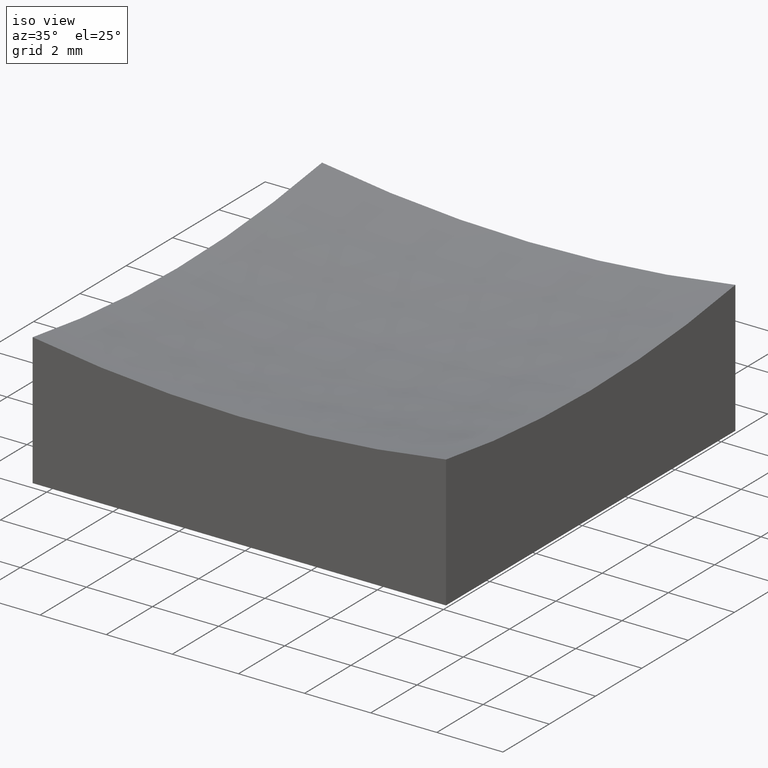
[diagram: clean part render]
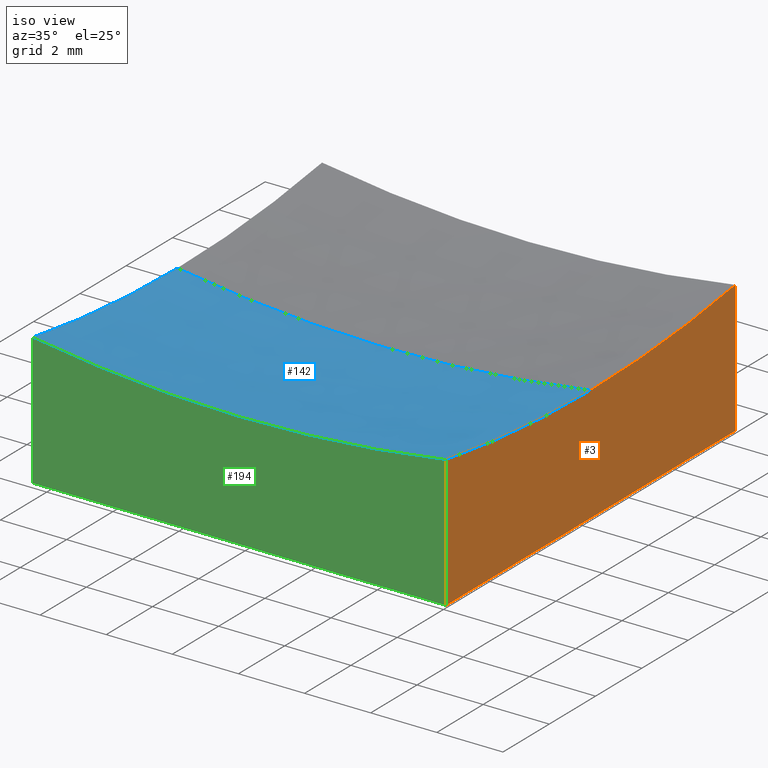
[diagram: same view with three faces highlighted in distinct colors, each labeled with its STEP entity id]
A machine part, iso view with three faces highlighted in distinct colors.
Their STEP definitions:

[orange] entity #3 — the highlighted planar face has unit normal (1, 0, -0).
#3 = ADVANCED_FACE ( 'NONE', ( #32 ), #9, .T. ) ;
#9 = PLANE ( 'NONE',  #179 ) ;
#12 = DIRECTION ( 'NONE',  ( 1.000000000000000000, 0.0000000000000000000, -0.0000000000000000000 ) ) ;
#13 = CARTESIAN_POINT ( 'NONE',  ( 6.250000000000000000, 6.250000000000000888, 0.0000000000000000000 ) ) ;
#17 = EDGE_CURVE ( 'NONE', #183, #203, #109, .T. ) ;
#23 = VERTEX_POINT ( 'NONE', #174 ) ;
#30 = DIRECTION ( 'NONE',  ( 0.0000000000000000000, -1.000000000000000000, 0.0000000000000000000 ) ) ;
#32 = FACE_OUTER_BOUND ( 'NONE', #112, .T. ) ;
#34 = DIRECTION ( 'NONE',  ( 0.0000000000000000000, 0.0000000000000000000, -1.000000000000000000 ) ) ;
#35 = CARTESIAN_POINT ( 'NONE',  ( 6.250000000000000000, 0.0000000000000000000, 3.491298426802226018 ) ) ;
#37 = AXIS2_PLACEMENT_3D ( 'NONE', #78, #12, #34 ) ;
#44 = ORIENTED_EDGE ( 'NONE', *, *, #17, .F. ) ;
#61 = CARTESIAN_POINT ( 'NONE',  ( 6.250000000000000000, -6.250000000000000888, 0.0000000000000000000 ) ) ;
#65 = EDGE_CURVE ( 'NONE', #23, #183, #191, .T. ) ;
#72 = CARTESIAN_POINT ( 'NONE',  ( 6.250000000000000000, 6.250000000000000888, 10.00000000000000000 ) ) ;
#73 = DIRECTION ( 'NONE',  ( 0.0000000000000000000, 0.0000000000000000000, -1.000000000000000000 ) ) ;
#76 = CARTESIAN_POINT ( 'NONE',  ( 6.250000000000000000, -6.250000000000000888, 3.988783664181906552 ) ) ;
#78 = CARTESIAN_POINT ( 'NONE',  ( 6.250000000000000000, 0.0000000000000000000, 43.00000000000000000 ) ) ;
#87 = EDGE_CURVE ( 'NONE', #175, #164, #222, .T. ) ;
#109 = LINE ( 'NONE', #133, #136 ) ;
#112 = EDGE_LOOP ( 'NONE', ( #204, #126, #44, #143, #166 ) ) ;
#126 = ORIENTED_EDGE ( 'NONE', *, *, #165, .T. ) ;
#129 = DIRECTION ( 'NONE',  ( 1.000000000000000000, 0.0000000000000000000, -0.0000000000000000000 ) ) ;
#133 = CARTESIAN_POINT ( 'NONE',  ( 6.250000000000000000, 6.250000000000000888, 0.0000000000000000000 ) ) ;
#134 = DIRECTION ( 'NONE',  ( -0.0000000000000000000, 0.0000000000000000000, -1.000000000000000000 ) ) ;
#136 = VECTOR ( 'NONE', #30, 1000.000000000000000 ) ;
#143 = ORIENTED_EDGE ( 'NONE', *, *, #65, .F. ) ;
#153 = CARTESIAN_POINT ( 'NONE',  ( 6.250000000000000000, 6.250000000000000888, 10.00000000000000000 ) ) ;
#155 = EDGE_CURVE ( 'NONE', #164, #23, #244, .T. ) ;
#164 = VERTEX_POINT ( 'NONE', #35 ) ;
#165 = EDGE_CURVE ( 'NONE', #175, #203, #223, .T. ) ;
#166 = ORIENTED_EDGE ( 'NONE', *, *, #155, .F. ) ;
#174 = CARTESIAN_POINT ( 'NONE',  ( 6.250000000000000000, 6.250000000000000888, 3.988783664181906552 ) ) ;
#175 = VERTEX_POINT ( 'NONE', #76 ) ;
#179 = AXIS2_PLACEMENT_3D ( 'NONE', #72, #129, #134 ) ;
#183 = VERTEX_POINT ( 'NONE', #13 ) ;
#189 = VECTOR ( 'NONE', #224, 1000.000000000000000 ) ;
#191 = LINE ( 'NONE', #153, #235 ) ;
#203 = VERTEX_POINT ( 'NONE', #61 ) ;
#204 = ORIENTED_EDGE ( 'NONE', *, *, #87, .F. ) ;
#207 = DIRECTION ( 'NONE',  ( 1.000000000000000000, 0.0000000000000000000, -0.0000000000000000000 ) ) ;
#208 = CARTESIAN_POINT ( 'NONE',  ( 6.250000000000000000, 0.0000000000000000000, 43.00000000000000000 ) ) ;
#214 = CARTESIAN_POINT ( 'NONE',  ( 6.250000000000000000, -6.250000000000000888, 10.00000000000000000 ) ) ;
#222 = CIRCLE ( 'NONE', #229, 39.50870157319778286 ) ;
#223 = LINE ( 'NONE', #214, #189 ) ;
#224 = DIRECTION ( 'NONE',  ( -0.0000000000000000000, -0.0000000000000000000, -1.000000000000000000 ) ) ;
#229 = AXIS2_PLACEMENT_3D ( 'NONE', #208, #207, #73 ) ;
#235 = VECTOR ( 'NONE', #241, 1000.000000000000000 ) ;
#241 = DIRECTION ( 'NONE',  ( -0.0000000000000000000, -0.0000000000000000000, -1.000000000000000000 ) ) ;
#244 = CIRCLE ( 'NONE', #37, 39.50870157319778286 ) ;

[blue] entity #142 — the highlighted spherical surface has radius 40 mm.
#1 = ORIENTED_EDGE ( 'NONE', *, *, #75, .F. ) ;
#5 = ORIENTED_EDGE ( 'NONE', *, *, #181, .F. ) ;
#7 = VERTEX_POINT ( 'NONE', #115 ) ;
#8 = CARTESIAN_POINT ( 'NONE',  ( -6.250000000000000000, 7.654042494670970425E-16, 3.491298426802226018 ) ) ;
#14 = DIRECTION ( 'NONE',  ( 0.0000000000000000000, 0.0000000000000000000, -1.000000000000000000 ) ) ;
#18 = SPHERICAL_SURFACE ( 'NONE', #167, 40.00000000000000711 ) ;
#21 = AXIS2_PLACEMENT_3D ( 'NONE', #193, #86, #150 ) ;
#27 = AXIS2_PLACEMENT_3D ( 'NONE', #154, #215, #159 ) ;
#33 = CIRCLE ( 'NONE', #27, 39.50870157319778286 ) ;
#35 = CARTESIAN_POINT ( 'NONE',  ( 6.250000000000000000, 0.0000000000000000000, 3.491298426802226018 ) ) ;
#42 = ORIENTED_EDGE ( 'NONE', *, *, #87, .T. ) ;
#46 = AXIS2_PLACEMENT_3D ( 'NONE', #119, #251, #116 ) ;
#47 = ORIENTED_EDGE ( 'NONE', *, *, #211, .F. ) ;
#73 = DIRECTION ( 'NONE',  ( 0.0000000000000000000, 0.0000000000000000000, -1.000000000000000000 ) ) ;
#74 = FACE_OUTER_BOUND ( 'NONE', #84, .T. ) ;
#75 = EDGE_CURVE ( 'NONE', #175, #7, #93, .T. ) ;
#76 = CARTESIAN_POINT ( 'NONE',  ( 6.250000000000000000, -6.250000000000000888, 3.988783664181906552 ) ) ;
#82 = AXIS2_PLACEMENT_3D ( 'NONE', #138, #246, #14 ) ;
#84 = EDGE_LOOP ( 'NONE', ( #47, #187, #5, #1, #42 ) ) ;
#86 = DIRECTION ( 'NONE',  ( 0.0000000000000000000, 1.000000000000000000, 0.0000000000000000000 ) ) ;
#87 = EDGE_CURVE ( 'NONE', #175, #164, #222, .T. ) ;
#88 = CARTESIAN_POINT ( 'NONE',  ( 1.289056355451229731E-14, 0.0000000000000000000, 2.999999999999995559 ) ) ;
#89 = CIRCLE ( 'NONE', #82, 40.00000000000000711 ) ;
#91 = DIRECTION ( 'NONE',  ( 1.000000000000000000, 0.0000000000000000000, 1.734723475976806848E-16 ) ) ;
#93 = CIRCLE ( 'NONE', #21, 39.50870157319778286 ) ;
#103 = VERTEX_POINT ( 'NONE', #88 ) ;
#105 = CIRCLE ( 'NONE', #46, 40.00000000000000711 ) ;
#115 = CARTESIAN_POINT ( 'NONE',  ( -6.250000000000000000, -6.250000000000000888, 3.988783664181906552 ) ) ;
#116 = DIRECTION ( 'NONE',  ( -1.000000000000000000, 1.224646799147353207E-16, 0.0000000000000000000 ) ) ;
#119 = CARTESIAN_POINT ( 'NONE',  ( 5.265981236333619259E-15, 0.0000000000000000000, 43.00000000000000000 ) ) ;
#138 = CARTESIAN_POINT ( 'NONE',  ( 5.265981236333619259E-15, 0.0000000000000000000, 43.00000000000000000 ) ) ;
#141 = VERTEX_POINT ( 'NONE', #8 ) ;
#142 = ADVANCED_FACE ( 'NONE', ( #74 ), #18, .F. ) ;
#150 = DIRECTION ( 'NONE',  ( 0.0000000000000000000, 0.0000000000000000000, 1.000000000000000000 ) ) ;
#154 = CARTESIAN_POINT ( 'NONE',  ( -6.250000000000000000, 0.0000000000000000000, 43.00000000000000000 ) ) ;
#159 = DIRECTION ( 'NONE',  ( 0.0000000000000000000, 0.0000000000000000000, -1.000000000000000000 ) ) ;
#164 = VERTEX_POINT ( 'NONE', #35 ) ;
#167 = AXIS2_PLACEMENT_3D ( 'NONE', #221, #197, #91 ) ;
#169 = EDGE_CURVE ( 'NONE', #103, #141, #105, .T. ) ;
#175 = VERTEX_POINT ( 'NONE', #76 ) ;
#181 = EDGE_CURVE ( 'NONE', #7, #141, #33, .T. ) ;
#187 = ORIENTED_EDGE ( 'NONE', *, *, #169, .T. ) ;
#193 = CARTESIAN_POINT ( 'NONE',  ( 5.265981236333619259E-15, -6.250000000000000888, 43.00000000000000000 ) ) ;
#197 = DIRECTION ( 'NONE',  ( -0.0000000000000000000, 1.000000000000000000, 0.0000000000000000000 ) ) ;
#207 = DIRECTION ( 'NONE',  ( 1.000000000000000000, 0.0000000000000000000, -0.0000000000000000000 ) ) ;
#208 = CARTESIAN_POINT ( 'NONE',  ( 6.250000000000000000, 0.0000000000000000000, 43.00000000000000000 ) ) ;
#211 = EDGE_CURVE ( 'NONE', #103, #164, #89, .T. ) ;
#215 = DIRECTION ( 'NONE',  ( 1.000000000000000000, 0.0000000000000000000, -0.0000000000000000000 ) ) ;
#221 = CARTESIAN_POINT ( 'NONE',  ( 5.265981236333619259E-15, 0.0000000000000000000, 43.00000000000000000 ) ) ;
#222 = CIRCLE ( 'NONE', #229, 39.50870157319778286 ) ;
#229 = AXIS2_PLACEMENT_3D ( 'NONE', #208, #207, #73 ) ;
#246 = DIRECTION ( 'NONE',  ( 0.0000000000000000000, -1.000000000000000000, 0.0000000000000000000 ) ) ;
#251 = DIRECTION ( 'NONE',  ( 1.224646799147353207E-16, 1.000000000000000000, 1.584475191367326902E-32 ) ) ;

[green] entity #194 — the highlighted planar face has unit normal (0, 1, 0).
#4 = ORIENTED_EDGE ( 'NONE', *, *, #75, .T. ) ;
#7 = VERTEX_POINT ( 'NONE', #115 ) ;
#21 = AXIS2_PLACEMENT_3D ( 'NONE', #193, #86, #150 ) ;
#25 = ORIENTED_EDGE ( 'NONE', *, *, #165, .F. ) ;
#39 = CARTESIAN_POINT ( 'NONE',  ( -6.250000000000000000, -6.250000000000000888, 0.0000000000000000000 ) ) ;
#40 = CARTESIAN_POINT ( 'NONE',  ( -6.250000000000000000, -6.250000000000000888, 0.0000000000000000000 ) ) ;
#41 = DIRECTION ( 'NONE',  ( 1.000000000000000000, 0.0000000000000000000, 0.0000000000000000000 ) ) ;
#49 = EDGE_LOOP ( 'NONE', ( #25, #4, #232, #170 ) ) ;
#61 = CARTESIAN_POINT ( 'NONE',  ( 6.250000000000000000, -6.250000000000000888, 0.0000000000000000000 ) ) ;
#63 = DIRECTION ( 'NONE',  ( -0.0000000000000000000, -0.0000000000000000000, -1.000000000000000000 ) ) ;
#75 = EDGE_CURVE ( 'NONE', #175, #7, #93, .T. ) ;
#76 = CARTESIAN_POINT ( 'NONE',  ( 6.250000000000000000, -6.250000000000000888, 3.988783664181906552 ) ) ;
#77 = LINE ( 'NONE', #156, #195 ) ;
#81 = FACE_OUTER_BOUND ( 'NONE', #49, .T. ) ;
#85 = AXIS2_PLACEMENT_3D ( 'NONE', #249, #198, #157 ) ;
#86 = DIRECTION ( 'NONE',  ( 0.0000000000000000000, 1.000000000000000000, 0.0000000000000000000 ) ) ;
#93 = CIRCLE ( 'NONE', #21, 39.50870157319778286 ) ;
#94 = PLANE ( 'NONE',  #85 ) ;
#115 = CARTESIAN_POINT ( 'NONE',  ( -6.250000000000000000, -6.250000000000000888, 3.988783664181906552 ) ) ;
#150 = DIRECTION ( 'NONE',  ( 0.0000000000000000000, 0.0000000000000000000, 1.000000000000000000 ) ) ;
#156 = CARTESIAN_POINT ( 'NONE',  ( -6.250000000000000000, -6.250000000000000888, 10.00000000000000000 ) ) ;
#157 = DIRECTION ( 'NONE',  ( 0.0000000000000000000, -0.0000000000000000000, 1.000000000000000000 ) ) ;
#165 = EDGE_CURVE ( 'NONE', #175, #203, #223, .T. ) ;
#170 = ORIENTED_EDGE ( 'NONE', *, *, #250, .T. ) ;
#175 = VERTEX_POINT ( 'NONE', #76 ) ;
#184 = EDGE_CURVE ( 'NONE', #7, #238, #77, .T. ) ;
#186 = LINE ( 'NONE', #39, #206 ) ;
#189 = VECTOR ( 'NONE', #224, 1000.000000000000000 ) ;
#193 = CARTESIAN_POINT ( 'NONE',  ( 5.265981236333619259E-15, -6.250000000000000888, 43.00000000000000000 ) ) ;
#194 = ADVANCED_FACE ( 'NONE', ( #81 ), #94, .F. ) ;
#195 = VECTOR ( 'NONE', #63, 1000.000000000000000 ) ;
#198 = DIRECTION ( 'NONE',  ( 0.0000000000000000000, 1.000000000000000000, 0.0000000000000000000 ) ) ;
#203 = VERTEX_POINT ( 'NONE', #61 ) ;
#206 = VECTOR ( 'NONE', #41, 1000.000000000000000 ) ;
#214 = CARTESIAN_POINT ( 'NONE',  ( 6.250000000000000000, -6.250000000000000888, 10.00000000000000000 ) ) ;
#223 = LINE ( 'NONE', #214, #189 ) ;
#224 = DIRECTION ( 'NONE',  ( -0.0000000000000000000, -0.0000000000000000000, -1.000000000000000000 ) ) ;
#232 = ORIENTED_EDGE ( 'NONE', *, *, #184, .T. ) ;
#238 = VERTEX_POINT ( 'NONE', #40 ) ;
#249 = CARTESIAN_POINT ( 'NONE',  ( -6.250000000000000000, -6.250000000000000888, 10.00000000000000000 ) ) ;
#250 = EDGE_CURVE ( 'NONE', #238, #203, #186, .T. ) ;